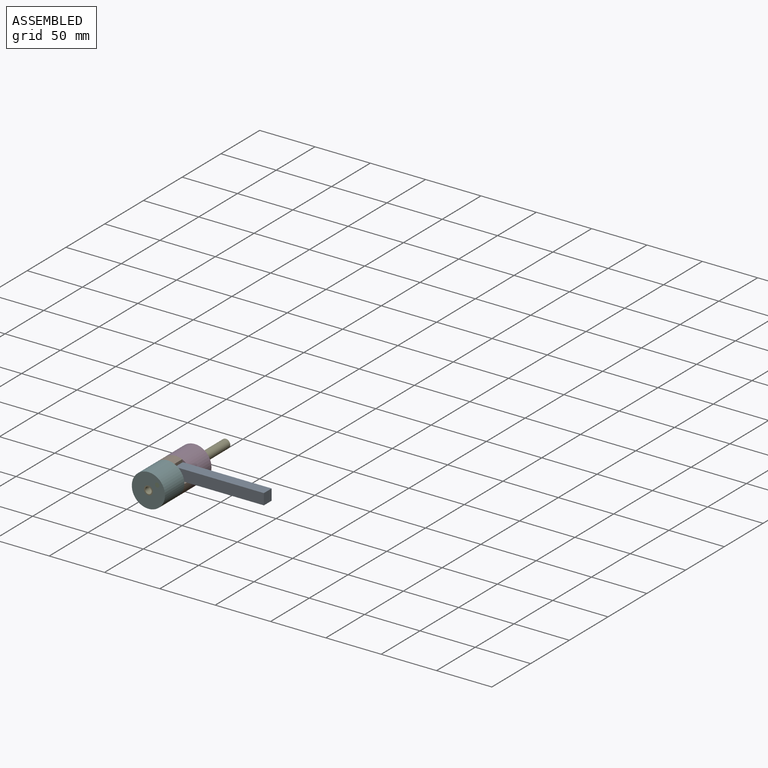
[diagram: assembled view]
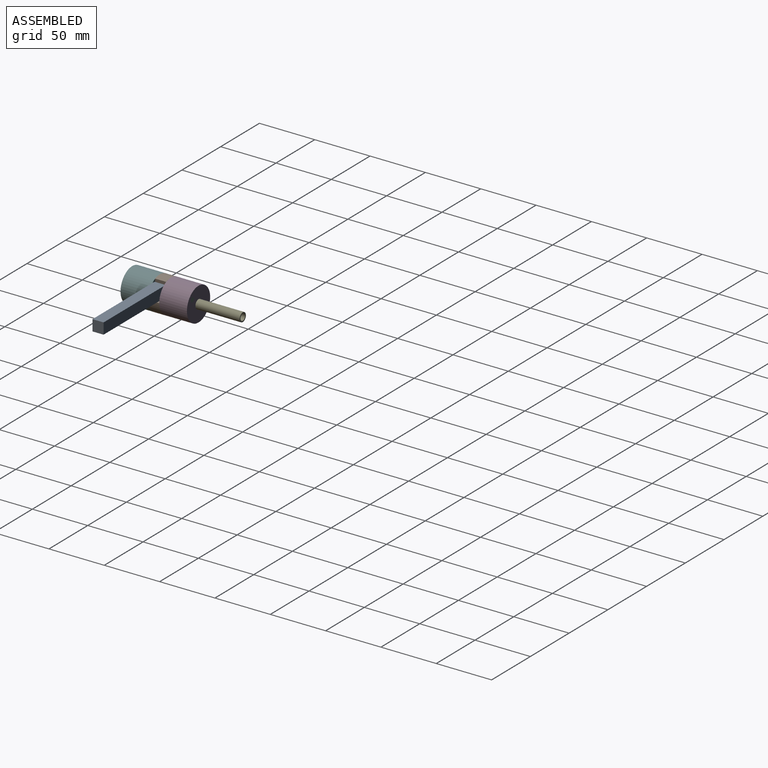
[diagram: assembled view, second angle]
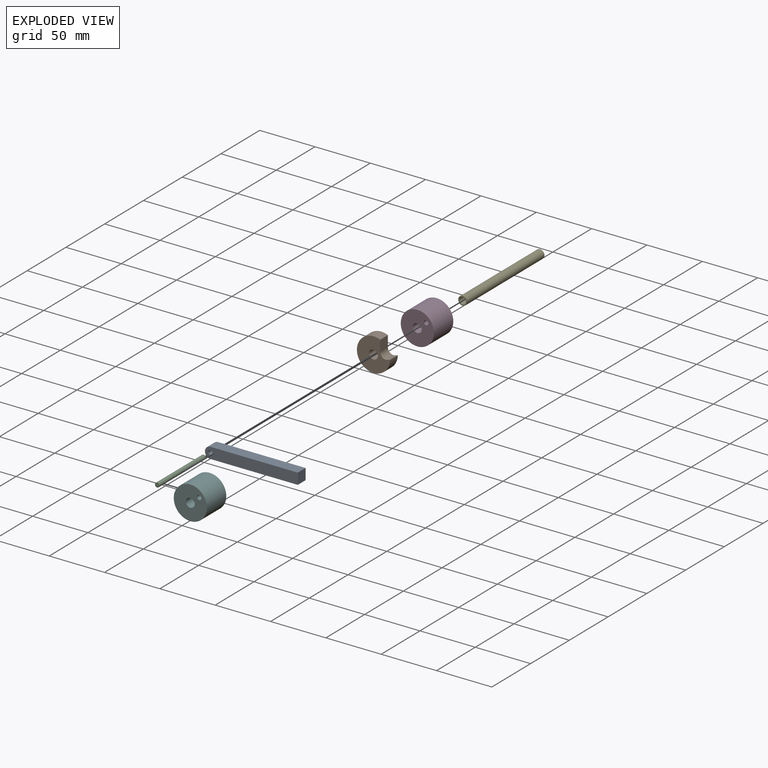
[diagram: exploded view]
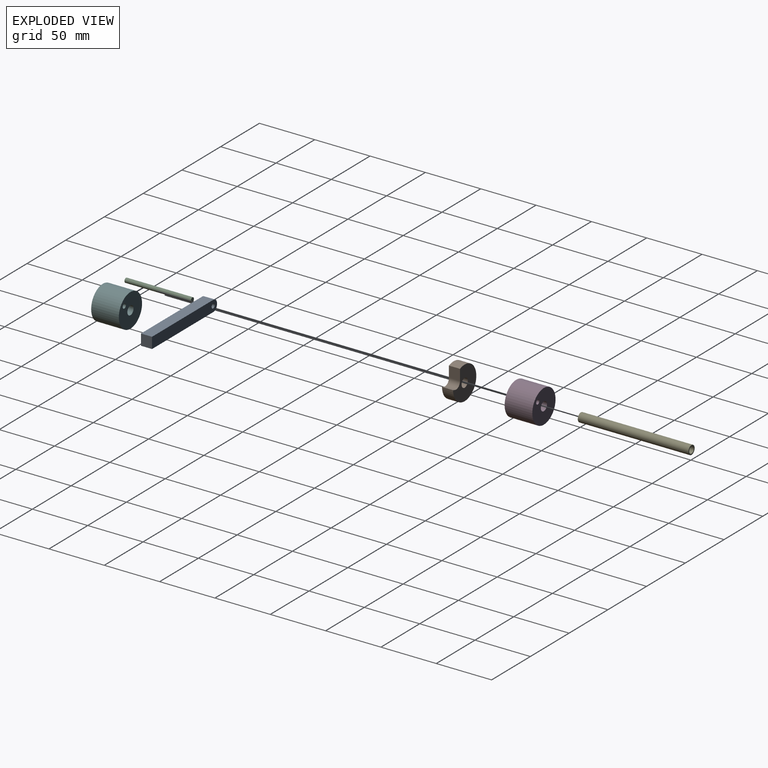
[diagram: exploded view, second angle]
ASSEMBLY  parts=6 mates=5
PART A: 7 faces, bbox 83.9x10x10 mm
  f0: plane 78.92x10mm, normal (0,0,1), area 789.2mm2, adj f1,f4,f5,f6
  f1: cylinder r=5mm len=10mm, axis (0,1,0), area 157.1mm2, adj f0,f2,f5,f6
  f2: plane 78.92x10mm, normal (0,0,-1), area 789.2mm2, adj f1,f4,f5,f6
  f3: cylinder r=2mm len=10mm, axis (0,1,0), area 125.7mm2, adj f5,f6
  f4: plane 10x10mm, normal (1,0,0), area 100mm2, adj f0,f2,f5,f6
  f5: plane 83.92x10mm, normal (0,-1,0), area 815.9mm2, adj f0,f1,f2,f3,f4
  f6: plane 83.92x10mm, normal (0,1,0), area 815.9mm2, adj f0,f1,f2,f3,f4
PART B: 7 faces, bbox 30x10x30 mm
  f0: cylinder r=5mm len=10mm, axis (0,1,0), area 92.5mm2, adj f1,f4,f5,f6
  f1: plane 10x10mm, normal (1,0,0), area 100mm2, adj f0,f2,f5,f6
  f2: cylinder r=15mm len=30mm, axis (0,1,0), area 765.7mm2, adj f1,f4,f5,f6
  f3: cylinder r=4mm len=10mm, axis (0,1,0), area 251.3mm2, adj f5,f6
  f4: plane 10x2.58mm, normal (-0.27,0,0.96), area 26.8mm2, adj f0,f2,f5,f6
  f5: plane 30x30mm, normal (0,-1,0), area 563.5mm2, adj f0,f1,f2,f3,f4
  f6: plane 30x30mm, normal (0,1,0), area 563.5mm2, adj f0,f1,f2,f3,f4
PART C: 3 faces, bbox 4x60x4 mm
  f0: cylinder r=2mm len=60mm, axis (0,1,0), area 754mm2, adj f1,f2
  f1: plane 4x4mm, normal (0,-1,0), area 12.6mm2, adj f0
  f2: plane 4x4mm, normal (0,1,0), area 12.6mm2, adj f0
PART D: 5 faces, bbox 30x25x30 mm
  f0: cylinder r=4mm len=25mm, axis (0,1,0), area 628.3mm2, adj f3,f4
  f1: cylinder r=2mm len=25mm, axis (0,1,0), area 314.2mm2, adj f3,f4
  f2: cylinder r=15mm len=30mm, axis (0,1,0), area 2356.2mm2, adj f3,f4
  f3: plane 30x30mm, normal (0,-1,0), area 644mm2, adj f0,f1,f2
  f4: plane 30x30mm, normal (0,1,0), area 644mm2, adj f0,f1,f2
PART E: 4 faces, bbox 8x100x8 mm
  f0: cylinder r=3mm len=100mm, axis (0,1,0), area 1885mm2, adj f2,f3
  f1: cylinder r=4mm len=100mm, axis (0,1,0), area 2513.3mm2, adj f2,f3
  f2: plane 8x8mm, normal (0,-1,0), area 22mm2, adj f0,f1
  f3: plane 8x8mm, normal (0,1,0), area 22mm2, adj f0,f1
PART F: same geometry as D
PLACE A t=(-31.6,-9.06,-15.93)mm
PLACE B t=(7.33,-9.06,-51.26)mm
PLACE C t=(5.92,15.94,-29.06)mm
PLACE D t=(17.96,15.94,7.38)mm
PLACE E t=(-34.54,55.94,-17.42)mm
PLACE F t=(17.96,-19.06,7.38)mm
MATE fastened E.f0 <-> F.f0  axis (0,1,0) through (-34.54,-44.06,-17.42)mm
MATE revolute A.f1 <-> D.f1  axis (0,1,0) through (-26.6,-9.06,-10.93)mm
MATE fastened C.f0 <-> F.f1  axis (0,-1,0) through (-26.6,-44.06,-10.93)mm
MATE fastened D.f0 <-> B.f2  axis (0,-1,0) through (-34.54,-9.06,-17.42)mm
MATE fastened B.f2 <-> F.f0  axis (0,-1,0) through (-34.54,-19.06,-17.42)mm
